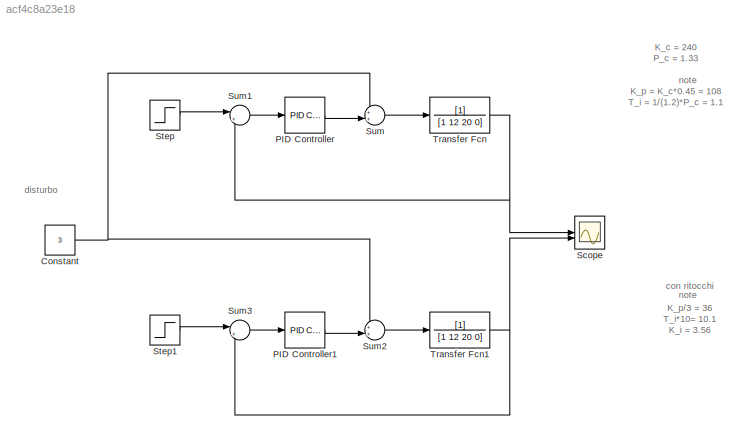
MODEL slx_acf4c8a23e18
KIND model
CONFIG AbsTol = auto
CONFIG EnableMultiTasking = off
CONFIG FixedStep = auto
CONFIG MaxStep = auto
CONFIG MinStep = auto
CONFIG RelTol = 1e-3
CONFIG SampleTimeConstraint = Unconstrained
CONFIG SolverName = VariableStepAuto
CONFIG StartTime = 0.0
CONFIG StopTime = 150
BLOCK [Constant] Constant
  Value = 3
BLOCK [Reference] PID Controller  REF=slpidlib/PID Controller
  LibrarySourceBlock = simulink/Continuous/PID Controller
  SourceBlock = slpidlib/PID Controller
  SourceType = PID 1dof
BLOCK [Reference] PID Controller1  REF=slpidlib/PID Controller
  LibrarySourceBlock = simulink/Continuous/PID Controller
  SourceBlock = slpidlib/PID Controller
  SourceType = PID 1dof
BLOCK [Scope] Scope
  Floating = off
  NumInputPorts = 2
  ScopeSpecificationString = Simulink.scopes.TimeScopeBlockCfg('CurrentConfiguration', extmgr.ConfigurationSet(extmgr.Configuration('Core','General UI',true),extmgr.Configuration('Core','Source UI',true),extmgr.Configuration('Sources','WiredSimulink',true),extmgr.Configuration('Visuals','Time Domain',true,'SerializedDisplays',{struct('MinYLimReal','-0.28764','MaxYLimReal','2.32506','YLabelReal','','MinYLimMag','0.00000','MaxY...<+1508ch>
BLOCK [Step] Step
  SampleTime = 0
BLOCK [Step] Step1
  SampleTime = 0
BLOCK [Sum] Sum
  Inputs = ++|
BLOCK [Sum] Sum1
  Inputs = |+-
BLOCK [Sum] Sum2
  Inputs = ++|
BLOCK [Sum] Sum3
  Inputs = |+-
BLOCK [TransferFcn] Transfer Fcn
  Denominator = [1 12 20 0]
BLOCK [TransferFcn] Transfer Fcn1
  Denominator = [1 12 20 0]
ANNOTATION (root): K_c = 240 P_c = 1.33 K_p = K_c*0.45 = 108 T_i = 1/(1.2)*P_c = 1.1 K_i = K_p/T_i = 98.1
ANNOTATION (root): con ritocchi K_p/3 = 36 T_i*10= 10.1 K_i = 3.56
ANNOTATION (root): disturbo
ANNOTATION (root): note
NET Constant:1 -> Sum2:1, Sum:1
LINE PID Controller1:1 -> Sum2:2
LINE PID Controller:1 -> Sum:2
LINE Step1:1 -> Sum3:1
LINE Step:1 -> Sum1:1
LINE Sum1:1 -> PID Controller:1
LINE Sum2:1 -> Transfer Fcn1:1
LINE Sum3:1 -> PID Controller1:1
LINE Sum:1 -> Transfer Fcn:1
NET Transfer Fcn1:1 -> Scope:2, Sum3:2
NET Transfer Fcn:1 -> Scope:1, Sum1:2
note: NET lines group one-source signal fan-out (src -> all destinations, sorted); 1:1 wires keep LINE
